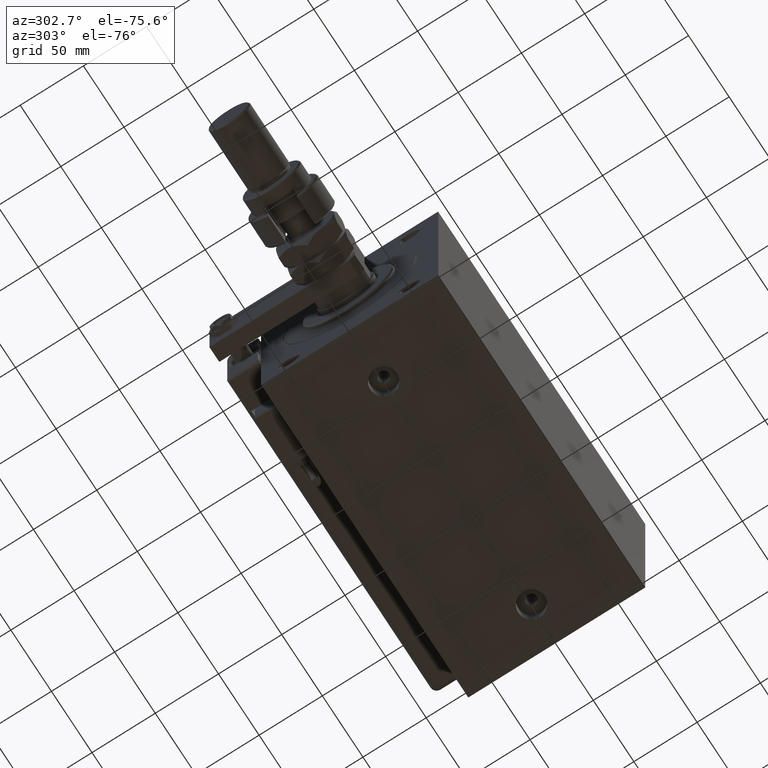
[diagram: clean part render]
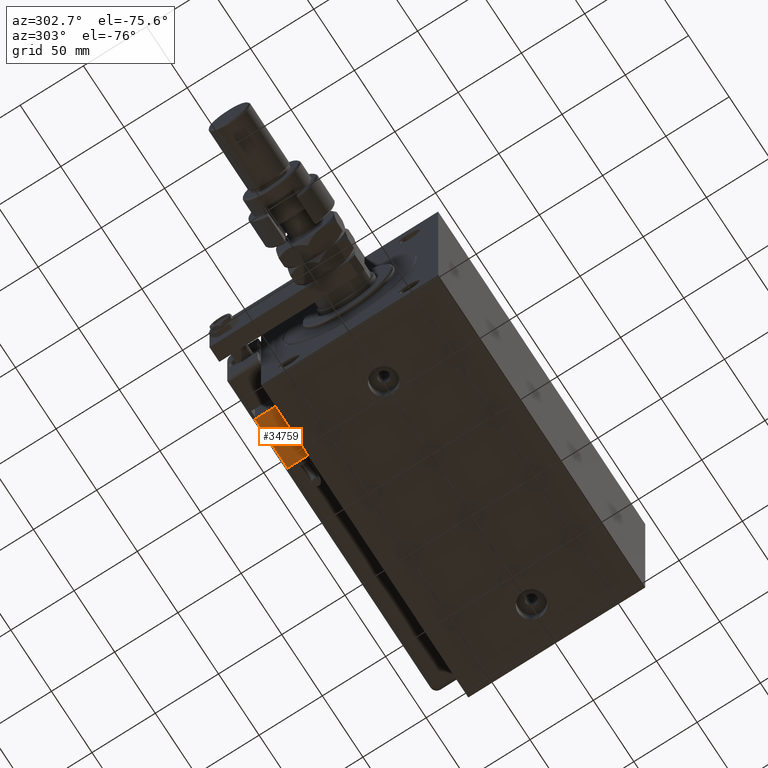
[diagram: same view with one face highlighted and labeled with its STEP entity id]
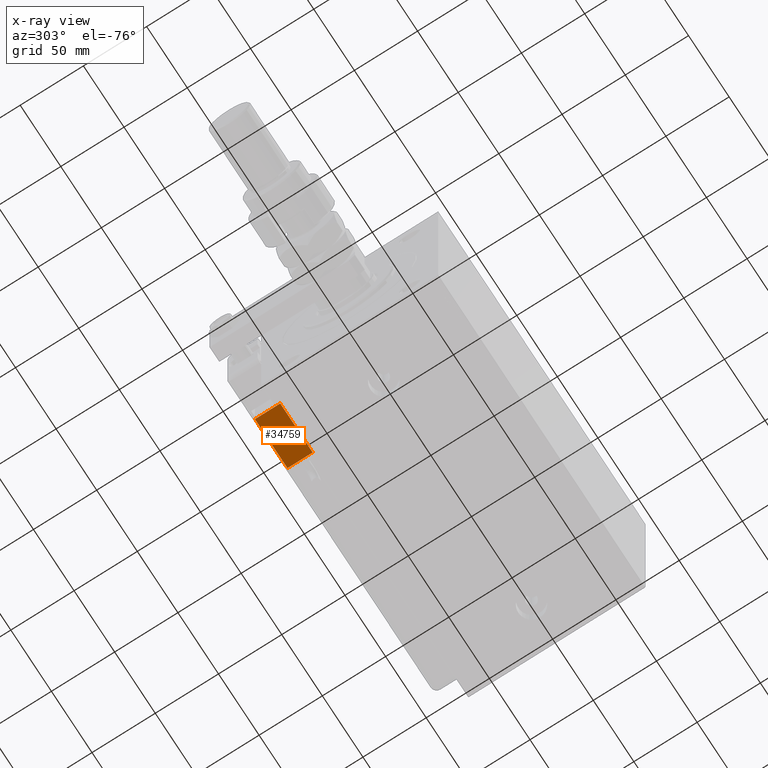
[diagram: x-ray of the same camera — body ghosted, the highlighted face saturated]
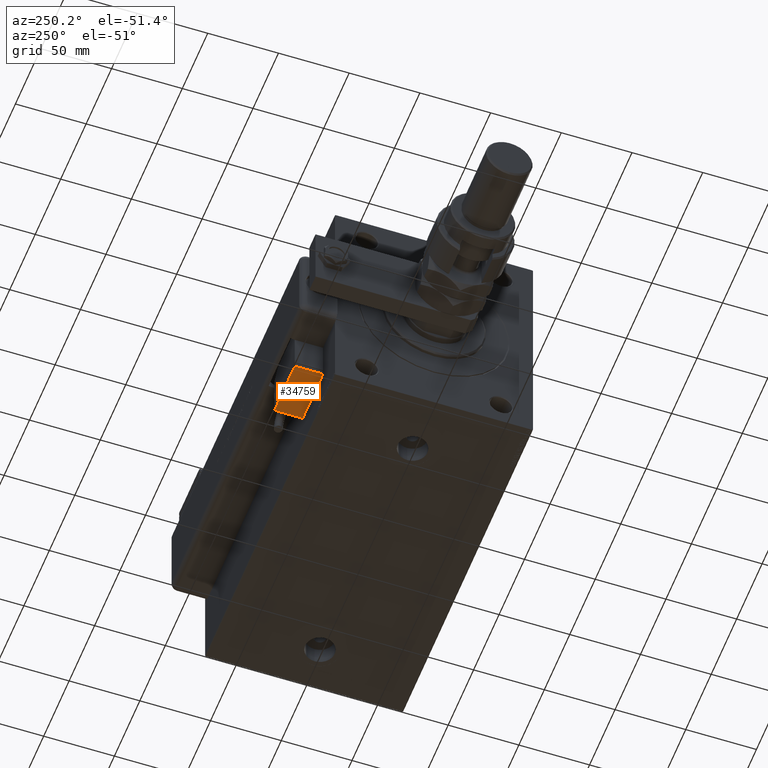
[diagram: same view with one face highlighted and labeled with its STEP entity id]
A machine part, auxiliary view. The second image highlights one B-rep face of the part: STEP entity #34759.
The next image is the same camera in x-ray: the body ghosted, the highlighted face saturated — about 0% of this face is hidden behind the body in this view.
A second angle (auxiliary view) of the same face is appended — the face is thin or edge-on in the first view.
In plain terms, the highlighted planar face has unit normal (0, 0, 1).
Its self-contained STEP definition (entity closure, byte-faithful):
#1926 = FACE_OUTER_BOUND ( 'NONE', #43758, .T. ) ;
#9948 = EDGE_CURVE ( 'NONE', #40380, #53001, #50478, .T. ) ;
#11420 = CARTESIAN_POINT ( 'NONE',  ( 20.00000000000005329, -17.49999999999996092, -9.999999999999998224 ) ) ;
#14231 = VERTEX_POINT ( 'NONE', #32868 ) ;
#14843 = VECTOR ( 'NONE', #53596, 1000.000000000000000 ) ;
#17223 = ORIENTED_EDGE ( 'NONE', *, *, #44770, .T. ) ;
#21776 = CARTESIAN_POINT ( 'NONE',  ( 0.000000000000000000, -17.49999999999996092, 0.000000000000000000 ) ) ;
#22006 = CARTESIAN_POINT ( 'NONE',  ( -19.99999999999994316, -17.49999999999996092, -9.999999999999998224 ) ) ;
#23265 = DIRECTION ( 'NONE',  ( -0.000000000000000000, -0.000000000000000000, -1.000000000000000000 ) ) ;
#25342 = VECTOR ( 'NONE', #39763, 1000.000000000000000 ) ;
#25346 = LINE ( 'NONE', #22006, #60466 ) ;
#27732 = CARTESIAN_POINT ( 'NONE',  ( 20.00000000000005329, -17.49999999999996092, 10.00000000000000000 ) ) ;
#28869 = ORIENTED_EDGE ( 'NONE', *, *, #9948, .T. ) ;
#29178 = LINE ( 'NONE', #34066, #14843 ) ;
#32614 = EDGE_CURVE ( 'NONE', #38119, #14231, #37255, .T. ) ;
#32868 = CARTESIAN_POINT ( 'NONE',  ( -19.99999999999994316, -17.49999999999996092, -9.999999999999998224 ) ) ;
#34066 = CARTESIAN_POINT ( 'NONE',  ( -19.99999999999994316, -17.49999999999996092, 10.00000000000000000 ) ) ;
#34443 = ORIENTED_EDGE ( 'NONE', *, *, #32614, .T. ) ;
#34759 = ADVANCED_FACE ( 'NONE', ( #1926 ), #60201, .F. ) ;
#37255 = LINE ( 'NONE', #37896, #52882 ) ;
#37896 = CARTESIAN_POINT ( 'NONE',  ( -19.99999999999994316, -17.49999999999996092, -9.999999999999998224 ) ) ;
#38119 = VERTEX_POINT ( 'NONE', #49750 ) ;
#39318 = EDGE_CURVE ( 'NONE', #14231, #40380, #25346, .T. ) ;
#39763 = DIRECTION ( 'NONE',  ( 0.000000000000000000, 0.000000000000000000, 1.000000000000000000 ) ) ;
#40380 = VERTEX_POINT ( 'NONE', #51298 ) ;
#41611 = DIRECTION ( 'NONE',  ( 0.000000000000000000, 1.000000000000000000, 0.000000000000000000 ) ) ;
#43758 = EDGE_LOOP ( 'NONE', ( #28869, #17223, #34443, #55944 ) ) ;
#44770 = EDGE_CURVE ( 'NONE', #53001, #38119, #29178, .T. ) ;
#45196 = DIRECTION ( 'NONE',  ( 1.000000000000000000, 0.000000000000000000, 0.000000000000000000 ) ) ;
#49750 = CARTESIAN_POINT ( 'NONE',  ( -19.99999999999994316, -17.49999999999996092, 10.00000000000000000 ) ) ;
#50478 = LINE ( 'NONE', #11420, #25342 ) ;
#51298 = CARTESIAN_POINT ( 'NONE',  ( 20.00000000000005329, -17.49999999999996092, -9.999999999999998224 ) ) ;
#52882 = VECTOR ( 'NONE', #23265, 1000.000000000000000 ) ;
#52976 = AXIS2_PLACEMENT_3D ( 'NONE', #21776, #41611, #61494 ) ;
#53001 = VERTEX_POINT ( 'NONE', #27732 ) ;
#53596 = DIRECTION ( 'NONE',  ( -1.000000000000000000, -0.000000000000000000, -0.000000000000000000 ) ) ;
#55944 = ORIENTED_EDGE ( 'NONE', *, *, #39318, .T. ) ;
#60201 = PLANE ( 'NONE',  #52976 ) ;
#60466 = VECTOR ( 'NONE', #45196, 1000.000000000000000 ) ;
#61494 = DIRECTION ( 'NONE',  ( 0.000000000000000000, -0.000000000000000000, 1.000000000000000000 ) ) ;